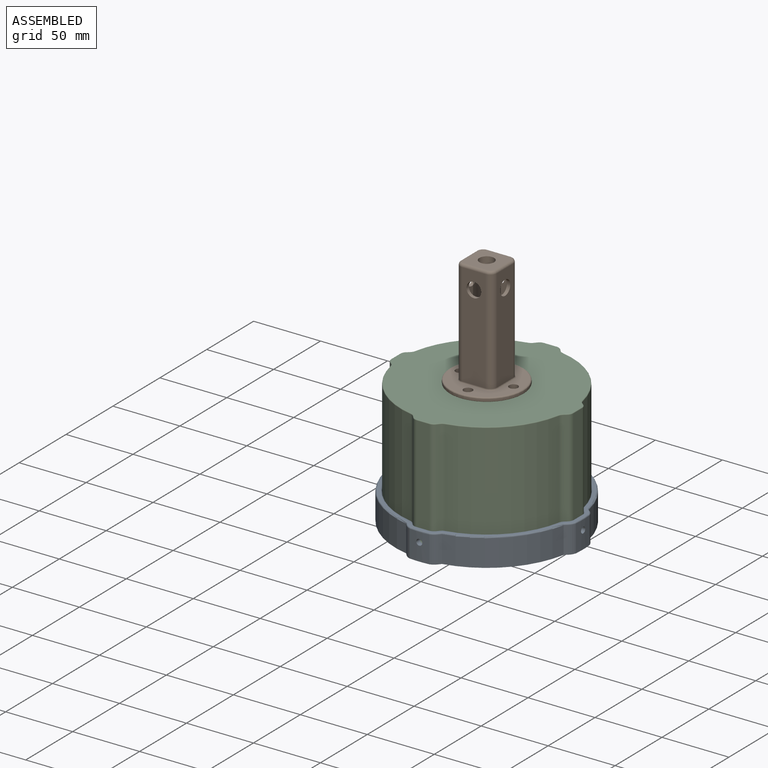
[diagram: assembled view]
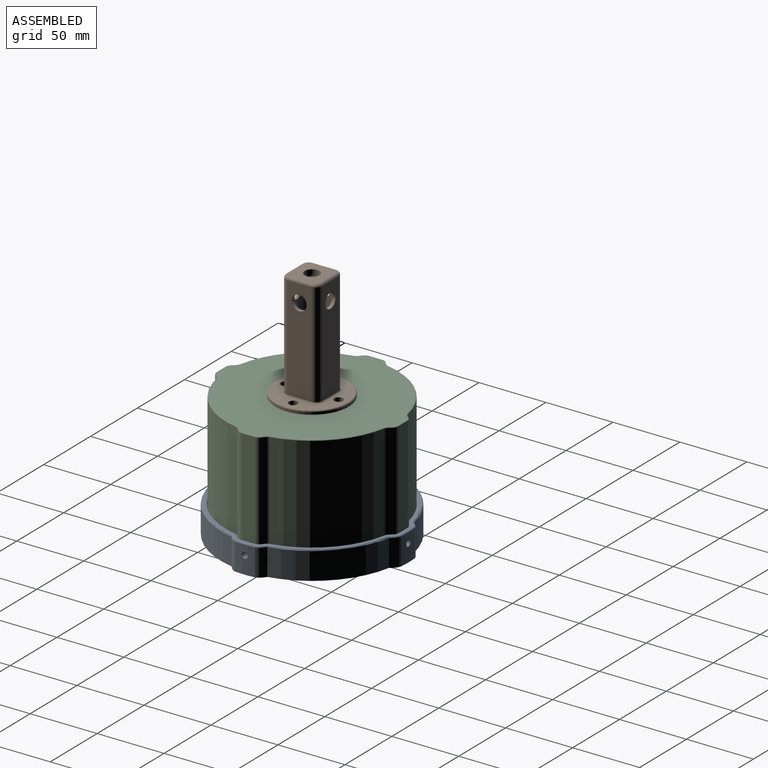
[diagram: assembled view, second angle]
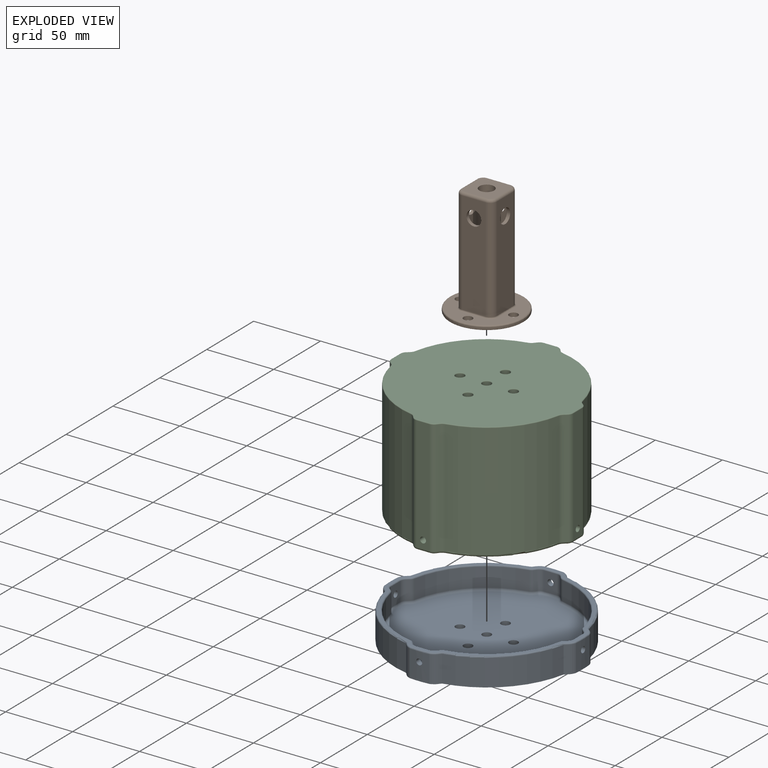
[diagram: exploded view]
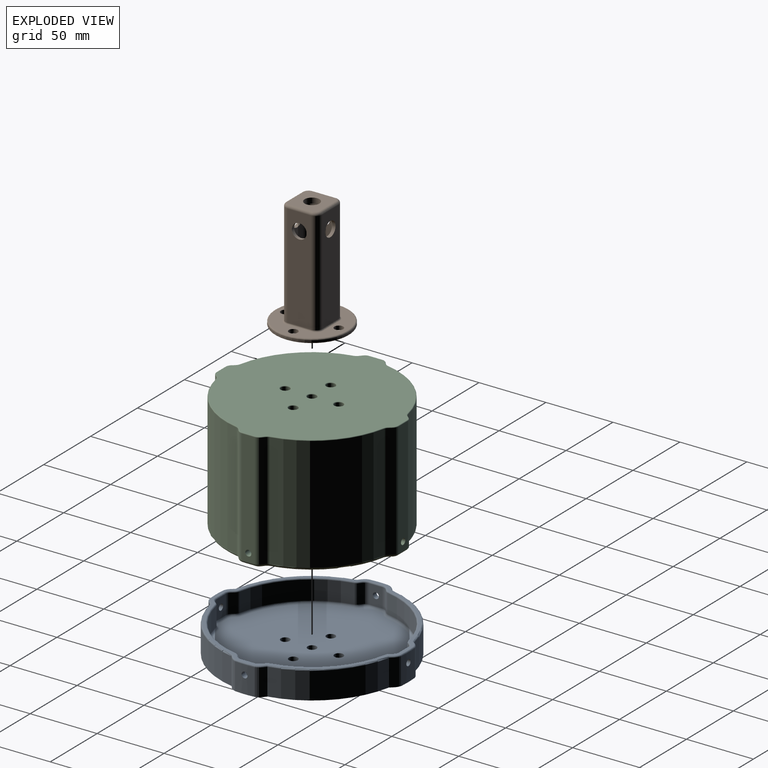
[diagram: exploded view, second angle]
ASSEMBLY  parts=3 mates=6
PART A: 156 faces, bbox 144.8x144.8x21 mm
  f0: cylinder r=72mm len=20mm, axis (0,0,-1), area 280.2mm2, adj f4,f73,f79,f92,f118
  f1: cylinder r=72mm len=20mm, axis (0,0,-1), area 280.2mm2, adj f4,f71,f87,f91,f106
  f2: cylinder r=72mm len=20mm, axis (0,0,-1), area 280.2mm2, adj f4,f74,f82,f86,f95
  f3: plane 142x142mm, normal (0,0,1), area 854.1mm2, adj f95,f96,f97,f98,f99,f100,f101,f102
  f4: plane 144x144mm, normal (0,0,-1), area 14747.2mm2, adj f0,f1,f2,f5,f75,f76,f77,f78
  f5: cylinder r=72mm len=20mm, axis (0,0,-1), area 280.2mm2, adj f4,f72,f75,f81,f107
  f6: cylinder r=64.1mm len=49.87mm, axis (0,0,-1), area 1060.4mm2, adj f35,f36,f55,f141
  f7: cylinder r=64.1mm len=49.87mm, axis (0,0,-1), area 1060.4mm2, adj f33,f34,f54,f128
  f8: cylinder r=64.1mm len=49.87mm, axis (0,0,-1), area 1060.4mm2, adj f31,f32,f70,f125
  f9: cylinder r=64.1mm len=49.87mm, axis (0,0,-1), area 1060.4mm2, adj f37,f38,f39,f144
  f10: plane 132.4x132.4mm, normal (0,0,1), area 12293.3mm2, adj f39,f40,f41,f42,f43,f44,f45,f46
  f11: plane 14.2x9.6mm, normal (0,-1,0), area 120.5mm2, adj f27,f28,f46,f72,f136
  f12: plane 14.2x9.6mm, normal (0,1,0), area 120.5mm2, adj f23,f24,f63,f71,f133
  f13: plane 14.2x9.6mm, normal (1,0,0), area 120.5mm2, adj f25,f26,f62,f74,f120
  f14: plane 14.2x9.6mm, normal (-1,0,0), area 120.5mm2, adj f29,f30,f47,f73,f149
  f15: plane 14.2x1.74mm, normal (-0.64,-0.77,0), area 32.2mm2, adj f30,f37,f43,f148
  f16: plane 14.2x1.74mm, normal (-0.64,0.77,0), area 32.2mm2, adj f29,f35,f51,f145
  f17: plane 14.2x1.74mm, normal (-0.77,-0.64,0), area 32.2mm2, adj f28,f38,f42,f140
  f18: plane 14.2x1.74mm, normal (0.77,-0.64,0), area 32.2mm2, adj f27,f33,f50,f132
  f19: plane 14.2x1.74mm, normal (0.64,-0.77,0), area 32.2mm2, adj f26,f34,f58,f124
  f20: plane 14.2x1.74mm, normal (0.64,0.77,0), area 32.2mm2, adj f25,f31,f66,f121
  f21: plane 14.2x1.74mm, normal (0.77,0.64,0), area 32.2mm2, adj f24,f32,f67,f129
  f22: plane 14.2x1.74mm, normal (-0.77,0.64,0), area 32.2mm2, adj f23,f36,f59,f137
  f23: cylinder r=5mm len=14.2mm, axis (0,0,1), area 62mm2, adj f12,f22,f61,f135
  f24: cylinder r=5mm len=14.2mm, axis (0,0,-1), area 62mm2, adj f12,f21,f65,f131
  f25: cylinder r=5mm len=14.2mm, axis (0,0,-1), area 62mm2, adj f13,f20,f64,f119
  f26: cylinder r=5mm len=14.2mm, axis (0,0,1), area 62mm2, adj f13,f19,f60,f122
  f27: cylinder r=5mm len=14.2mm, axis (0,0,-1), area 62mm2, adj f11,f18,f48,f134
  f28: cylinder r=5mm len=14.2mm, axis (0,0,1), area 62mm2, adj f11,f17,f44,f138
  f29: cylinder r=5mm len=14.2mm, axis (0,0,1), area 62mm2, adj f14,f16,f49,f147
  f30: cylinder r=5mm len=14.2mm, axis (0,0,-1), area 62mm2, adj f14,f15,f45,f150
  f31: cylinder r=5mm len=14.2mm, axis (0,0,-1), area 47.6mm2, adj f8,f20,f68,f123
  f32: cylinder r=5mm len=14.2mm, axis (0,0,-1), area 47.6mm2, adj f8,f21,f69,f127
  f33: cylinder r=5mm len=14.2mm, axis (0,0,-1), area 47.6mm2, adj f7,f18,f52,f130
  f34: cylinder r=5mm len=14.2mm, axis (0,0,-1), area 47.6mm2, adj f7,f19,f56,f126
  f35: cylinder r=5mm len=14.2mm, axis (0,0,-1), area 47.6mm2, adj f6,f16,f53,f143
  f36: cylinder r=5mm len=14.2mm, axis (0,0,-1), area 47.6mm2, adj f6,f22,f57,f139
  f37: cylinder r=5mm len=14.2mm, axis (0,0,-1), area 47.6mm2, adj f9,f15,f41,f146
  f38: cylinder r=5mm len=14.2mm, axis (0,0,-1), area 47.6mm2, adj f9,f17,f40,f142
  f39: torus R=62.3mm, axis (0,0,1), area 209mm2, adj f9,f10,f40,f41
  f40: torus R=6.8mm, axis (0,0,1), area 10.7mm2, adj f10,f38,f39,f42
  f41: torus R=6.8mm, axis (0,0,1), area 10.7mm2, adj f10,f37,f39,f43
  f42: cylinder r=1.8mm len=2.9mm, axis (0.64,-0.77,0), area 6.4mm2, adj f10,f17,f40,f44
  f43: cylinder r=1.8mm len=2.9mm, axis (-0.77,0.64,0), area 6.4mm2, adj f10,f15,f41,f45
  f44: torus R=3.2mm, axis (0,0,1), area 10.7mm2, adj f10,f28,f42,f46
  f45: torus R=3.2mm, axis (0,0,1), area 10.7mm2, adj f10,f30,f43,f47
  f46: cylinder r=1.8mm len=9.6mm, axis (1,0,0), area 27.2mm2, adj f10,f11,f44,f48
  f47: cylinder r=1.8mm len=9.6mm, axis (0,-1,0), area 27.2mm2, adj f10,f14,f45,f49
  f48: torus R=3.2mm, axis (0,0,1), area 10.7mm2, adj f10,f27,f46,f50
  f49: torus R=3.2mm, axis (0,0,1), area 10.7mm2, adj f10,f29,f47,f51
  f50: cylinder r=1.8mm len=2.9mm, axis (0.64,0.77,0), area 6.4mm2, adj f10,f18,f48,f52
  f51: cylinder r=1.8mm len=2.9mm, axis (0.77,0.64,0), area 6.4mm2, adj f10,f16,f49,f53
  f52: torus R=6.8mm, axis (0,0,1), area 10.7mm2, adj f10,f33,f50,f54
  f53: torus R=6.8mm, axis (0,0,1), area 10.7mm2, adj f10,f35,f51,f55
  f54: torus R=62.3mm, axis (0,0,1), area 209mm2, adj f7,f10,f52,f56
  f55: torus R=62.3mm, axis (0,0,1), area 209mm2, adj f6,f10,f53,f57
  f56: torus R=6.8mm, axis (0,0,1), area 10.7mm2, adj f10,f34,f54,f58
  f57: torus R=6.8mm, axis (0,0,1), area 10.7mm2, adj f10,f36,f55,f59
  f58: cylinder r=1.8mm len=2.9mm, axis (0.77,0.64,0), area 6.4mm2, adj f10,f19,f56,f60
  f59: cylinder r=1.8mm len=2.9mm, axis (-0.64,-0.77,0), area 6.4mm2, adj f10,f22,f57,f61
  f60: torus R=3.2mm, axis (0,0,1), area 10.7mm2, adj f10,f26,f58,f62
  f61: torus R=3.2mm, axis (0,0,1), area 10.7mm2, adj f10,f23,f59,f63
  f62: cylinder r=1.8mm len=9.6mm, axis (0,1,0), area 27.2mm2, adj f10,f13,f60,f64
  f63: cylinder r=1.8mm len=9.6mm, axis (-1,0,0), area 27.2mm2, adj f10,f12,f61,f65
  f64: torus R=3.2mm, axis (0,0,1), area 10.7mm2, adj f10,f25,f62,f66
  f65: torus R=3.2mm, axis (0,0,1), area 10.7mm2, adj f10,f24,f63,f67
  f66: cylinder r=1.8mm len=2.9mm, axis (-0.77,0.64,0), area 6.4mm2, adj f10,f20,f64,f68
  f67: cylinder r=1.8mm len=2.9mm, axis (-0.64,0.77,0), area 6.4mm2, adj f10,f21,f65,f69
  f68: torus R=6.8mm, axis (0,0,1), area 10.7mm2, adj f10,f31,f66,f70
  f69: torus R=6.8mm, axis (0,0,1), area 10.7mm2, adj f10,f32,f67,f70
  f70: torus R=62.3mm, axis (0,0,1), area 209mm2, adj f8,f10,f68,f69
  f71: cylinder r=2.25mm len=4.5mm, axis (0,-1,0), area 56.3mm2, adj f1,f12
  f72: cylinder r=2.25mm len=4.5mm, axis (0,-1,0), area 56.3mm2, adj f5,f11
  f73: cylinder r=2.25mm len=4.5mm, axis (1,0,0), area 56.3mm2, adj f0,f14
  f74: cylinder r=2.25mm len=4.5mm, axis (1,0,0), area 56.3mm2, adj f2,f13
  f75: cylinder r=9mm len=20mm, axis (0,0,1), area 104.7mm2, adj f4,f5,f76,f109
  f76: plane 20x2.01mm, normal (0.77,0.64,0), area 52.4mm2, adj f4,f75,f77,f111
  f77: cylinder r=68.1mm len=53.39mm, axis (0,0,1), area 1600.6mm2, adj f4,f76,f78,f113
  f78: plane 20x2.01mm, normal (0.64,0.77,0), area 52.4mm2, adj f4,f77,f79,f115
  f79: cylinder r=9mm len=20mm, axis (0,0,1), area 104.7mm2, adj f0,f4,f78,f117
  f80: plane 20x2.01mm, normal (-0.77,0.64,0), area 52.4mm2, adj f4,f81,f84,f103
  f81: cylinder r=9mm len=20mm, axis (0,0,1), area 104.7mm2, adj f4,f5,f80,f105
  f82: cylinder r=9mm len=20mm, axis (0,0,1), area 104.7mm2, adj f2,f4,f83,f97
  f83: plane 20x2.01mm, normal (-0.64,0.77,0), area 52.4mm2, adj f4,f82,f84,f99
  f84: cylinder r=68.1mm len=53.39mm, axis (0,0,1), area 1600.6mm2, adj f4,f80,f83,f101
  f85: plane 20x2.01mm, normal (-0.64,-0.77,0), area 52.4mm2, adj f4,f86,f89,f98
  f86: cylinder r=9mm len=20mm, axis (0,0,1), area 104.7mm2, adj f2,f4,f85,f96
  f87: cylinder r=9mm len=20mm, axis (0,0,1), area 104.7mm2, adj f1,f4,f88,f104
  f88: plane 20x2.01mm, normal (-0.77,-0.64,0), area 52.4mm2, adj f4,f87,f89,f102
  f89: cylinder r=68.1mm len=53.39mm, axis (0,0,1), area 1600.6mm2, adj f4,f85,f88,f100
  f90: plane 20x2.01mm, normal (0.77,-0.64,0), area 52.4mm2, adj f4,f91,f94,f110
  f91: cylinder r=9mm len=20mm, axis (0,0,1), area 104.7mm2, adj f1,f4,f90,f108
  f92: cylinder r=9mm len=20mm, axis (0,0,1), area 104.7mm2, adj f0,f4,f93,f116
  f93: plane 20x2.01mm, normal (0.64,-0.77,0), area 52.4mm2, adj f4,f92,f94,f114
  f94: cylinder r=68.1mm len=53.39mm, axis (0,0,1), area 1600.6mm2, adj f4,f90,f93,f112
  f95: torus R=71mm, axis (0,0,1), area 23mm2, adj f2,f3,f96,f97
  f96: torus R=8mm, axis (0,0,1), area 7.8mm2, adj f3,f86,f95,f98
  f97: torus R=8mm, axis (0,0,1), area 7.8mm2, adj f3,f82,f95,f99
  f98: cylinder r=1mm len=2.92mm, axis (0.77,-0.64,0), area 4.3mm2, adj f3,f85,f96,f100
  f99: cylinder r=1mm len=2.92mm, axis (-0.77,-0.64,0), area 4.3mm2, adj f3,f83,f97,f101
  f100: torus R=67.1mm, axis (0,0,1), area 125.4mm2, adj f3,f89,f98,f102
  f101: torus R=67.1mm, axis (0,0,1), area 125.4mm2, adj f3,f84,f99,f103
  f102: cylinder r=1mm len=2.92mm, axis (0.64,-0.77,0), area 4.3mm2, adj f3,f88,f100,f104
  f103: cylinder r=1mm len=2.92mm, axis (-0.64,-0.77,0), area 4.3mm2, adj f3,f80,f101,f105
  f104: torus R=8mm, axis (0,0,1), area 7.8mm2, adj f3,f87,f102,f106
  f105: torus R=8mm, axis (0,0,1), area 7.8mm2, adj f3,f81,f103,f107
  f106: torus R=71mm, axis (0,0,1), area 23mm2, adj f1,f3,f104,f108
  f107: torus R=71mm, axis (0,0,1), area 23mm2, adj f3,f5,f105,f109
  f108: torus R=8mm, axis (0,0,1), area 7.8mm2, adj f3,f91,f106,f110
  f109: torus R=8mm, axis (0,0,1), area 7.8mm2, adj f3,f75,f107,f111
  f110: cylinder r=1mm len=2.92mm, axis (0.64,0.77,0), area 4.3mm2, adj f3,f90,f108,f112
  f111: cylinder r=1mm len=2.92mm, axis (-0.64,0.77,0), area 4.3mm2, adj f3,f76,f109,f113
  f112: torus R=67.1mm, axis (0,0,1), area 125.4mm2, adj f3,f94,f110,f114
  f113: torus R=67.1mm, axis (0,0,1), area 125.4mm2, adj f3,f77,f111,f115
  f114: cylinder r=1mm len=2.92mm, axis (0.77,0.64,0), area 4.3mm2, adj f3,f93,f112,f116
  f115: cylinder r=1mm len=2.92mm, axis (-0.77,0.64,0), area 4.3mm2, adj f3,f78,f113,f117
  f116: torus R=8mm, axis (0,0,1), area 7.8mm2, adj f3,f92,f114,f118
  f117: torus R=8mm, axis (0,0,1), area 7.8mm2, adj f3,f79,f115,f118
  f118: torus R=71mm, axis (0,0,1), area 23mm2, adj f0,f3,f116,f117
  f119: torus R=6mm, axis (0,0,1), area 7.4mm2, adj f3,f25,f120,f121
  f120: cylinder r=1mm len=9.6mm, axis (0,1,0), area 15.1mm2, adj f3,f13,f119,f122
  f121: cylinder r=1mm len=2.38mm, axis (-0.77,0.64,0), area 3.6mm2, adj f3,f20,f119,f123
  f122: torus R=6mm, axis (0,0,1), area 7.4mm2, adj f3,f26,f120,f124
  f123: torus R=4mm, axis (0,0,1), area 4.9mm2, adj f3,f31,f121,f125
  f124: cylinder r=1mm len=2.38mm, axis (0.77,0.64,0), area 3.6mm2, adj f3,f19,f122,f126
  f125: torus R=65.1mm, axis (0,0,1), area 118mm2, adj f3,f8,f123,f127
  f126: torus R=4mm, axis (0,0,1), area 4.9mm2, adj f3,f34,f124,f128
  f127: torus R=4mm, axis (0,0,1), area 4.9mm2, adj f3,f32,f125,f129
  f128: torus R=65.1mm, axis (0,0,1), area 118mm2, adj f3,f7,f126,f130
  f129: cylinder r=1mm len=2.38mm, axis (-0.64,0.77,0), area 3.6mm2, adj f3,f21,f127,f131
  f130: torus R=4mm, axis (0,0,1), area 4.9mm2, adj f3,f33,f128,f132
  f131: torus R=6mm, axis (0,0,1), area 7.4mm2, adj f3,f24,f129,f133
  f132: cylinder r=1mm len=2.38mm, axis (0.64,0.77,0), area 3.6mm2, adj f3,f18,f130,f134
  f133: cylinder r=1mm len=9.6mm, axis (-1,0,0), area 15.1mm2, adj f3,f12,f131,f135
  f134: torus R=6mm, axis (0,0,1), area 7.4mm2, adj f3,f27,f132,f136
  f135: torus R=6mm, axis (0,0,1), area 7.4mm2, adj f3,f23,f133,f137
  f136: cylinder r=1mm len=9.6mm, axis (1,0,0), area 15.1mm2, adj f3,f11,f134,f138
  f137: cylinder r=1mm len=2.38mm, axis (-0.64,-0.77,0), area 3.6mm2, adj f3,f22,f135,f139
  f138: torus R=6mm, axis (0,0,1), area 7.4mm2, adj f3,f28,f136,f140
  f139: torus R=4mm, axis (0,0,1), area 4.9mm2, adj f3,f36,f137,f141
  f140: cylinder r=1mm len=2.38mm, axis (0.64,-0.77,0), area 3.6mm2, adj f3,f17,f138,f142
  f141: torus R=65.1mm, axis (0,0,1), area 118mm2, adj f3,f6,f139,f143
  f142: torus R=4mm, axis (0,0,1), area 4.9mm2, adj f3,f38,f140,f144
  f143: torus R=4mm, axis (0,0,1), area 4.9mm2, adj f3,f35,f141,f145
  f144: torus R=65.1mm, axis (0,0,1), area 118mm2, adj f3,f9,f142,f146
  f145: cylinder r=1mm len=2.38mm, axis (0.77,0.64,0), area 3.6mm2, adj f3,f16,f143,f147
  f146: torus R=4mm, axis (0,0,1), area 4.9mm2, adj f3,f37,f144,f148
  f147: torus R=6mm, axis (0,0,1), area 7.4mm2, adj f3,f29,f145,f149
  f148: cylinder r=1mm len=2.38mm, axis (-0.77,0.64,0), area 3.6mm2, adj f3,f15,f146,f150
  f149: cylinder r=1mm len=9.6mm, axis (0,-1,0), area 15.1mm2, adj f3,f14,f147,f150
  f150: torus R=6mm, axis (0,0,1), area 7.4mm2, adj f3,f30,f148,f149
  f151: cylinder r=3.3mm len=6.6mm, axis (0,0,1), area 82.9mm2, adj f4,f10
  f152: cylinder r=3.3mm len=6.6mm, axis (0,0,1), area 82.9mm2, adj f4,f10
  f153: cylinder r=3.3mm len=6.6mm, axis (0,0,1), area 82.9mm2, adj f4,f10
  f154: cylinder r=3.3mm len=6.6mm, axis (0,0,1), area 82.9mm2, adj f4,f10
  f155: cylinder r=3.3mm len=6.6mm, axis (0,0,1), area 82.9mm2, adj f4,f10
PART B: 64 faces, bbox 59.5x59.5x83 mm
  f0: plane 23.4x23.4mm, normal (0,0,1), area 444.8mm2, adj f17,f22,f23,f24,f25,f27,f29,f31
  f1: plane 54x54mm, normal (0,0,-1), area 1631.8mm2, adj f4,f5,f6,f7,f47,f48,f49,f50
  f2: plane 53x53mm, normal (0,0,1), area 1235.9mm2, adj f4,f5,f6,f7,f34,f35,f36,f37
  f3: cylinder r=27.5mm len=55mm, axis (0,0,-1), area 259.2mm2, adj f42,f55
  f4: cylinder r=3.3mm len=6.6mm, axis (0,0,1), area 62.2mm2, adj f1,f2
  f5: cylinder r=3.3mm len=6.6mm, axis (0,0,1), area 62.2mm2, adj f1,f2
  f6: cylinder r=3.3mm len=6.6mm, axis (0,0,1), area 62.2mm2, adj f1,f2
  f7: cylinder r=3.3mm len=6.6mm, axis (0,0,1), area 62.2mm2, adj f1,f2
  f8: plane 77x17.4mm, normal (1,0,0), area 1244.8mm2, adj f20,f22,f30,f32,f37
  f9: plane 77x17.4mm, normal (0,1,0), area 1244.8mm2, adj f19,f23,f28,f30,f34
  f10: plane 77x17.4mm, normal (-1,0,0), area 1244.8mm2, adj f21,f25,f26,f28,f38
  f11: plane 77x17.4mm, normal (0,-1,0), area 1244.8mm2, adj f18,f24,f26,f32,f41
  f12: plane 76.5x12.4mm, normal (0,-1,0), area 853.6mm2, adj f19,f43,f46,f49,f57
  f13: plane 76.5x12.4mm, normal (1,0,0), area 853.6mm2, adj f21,f43,f44,f48,f58
  f14: plane 76.5x12.4mm, normal (0,1,0), area 853.6mm2, adj f18,f44,f45,f52,f62
  f15: plane 76.5x12.4mm, normal (-1,0,0), area 853.6mm2, adj f20,f45,f46,f53,f61
  f16: plane 18.4x18.4mm, normal (0,0,-1), area 235.8mm2, adj f17,f56,f57,f58,f59,f60,f61,f62
  f17: cylinder r=5.5mm len=11mm, axis (0,0,1), area 138.2mm2, adj f0,f16
  f18: cylinder r=5.5mm len=11mm, axis (0,1,0), area 86.4mm2, adj f11,f14
  f19: cylinder r=5.5mm len=11mm, axis (0,1,0), area 86.4mm2, adj f9,f12
  f20: cylinder r=5.5mm len=11mm, axis (-1,0,0), area 86.4mm2, adj f8,f15
  f21: cylinder r=5.5mm len=11mm, axis (-1,0,0), area 86.4mm2, adj f10,f13
  f22: cylinder r=2mm len=17.4mm, axis (0,-1,0), area 54.7mm2, adj f0,f8,f31,f33
  f23: cylinder r=2mm len=17.4mm, axis (1,0,0), area 54.7mm2, adj f0,f9,f29,f31
  f24: cylinder r=2mm len=17.4mm, axis (-1,0,0), area 54.7mm2, adj f0,f11,f27,f33
  f25: cylinder r=2mm len=17.4mm, axis (0,1,0), area 54.7mm2, adj f0,f10,f27,f29
  f26: cylinder r=5mm len=77mm, axis (0,0,1), area 604.8mm2, adj f10,f11,f27,f40
  f27: torus R=3mm, axis (0,0,1), area 21.1mm2, adj f0,f24,f25,f26
  f28: cylinder r=5mm len=77mm, axis (0,0,-1), area 604.8mm2, adj f9,f10,f29,f36
  f29: torus R=3mm, axis (0,0,1), area 21.1mm2, adj f0,f23,f25,f28
  f30: cylinder r=5mm len=77mm, axis (0,0,1), area 604.8mm2, adj f8,f9,f31,f35
  f31: torus R=3mm, axis (0,0,1), area 21.1mm2, adj f0,f22,f23,f30
  f32: cylinder r=5mm len=77mm, axis (0,0,-1), area 604.8mm2, adj f8,f11,f33,f39
  f33: torus R=3mm, axis (0,0,1), area 21.1mm2, adj f0,f22,f24,f32
  f34: cylinder r=1mm len=17.4mm, axis (-1,0,0), area 27.3mm2, adj f2,f9,f35,f36
  f35: torus R=6mm, axis (0,0,1), area 13.2mm2, adj f2,f30,f34,f37
  f36: torus R=6mm, axis (0,0,1), area 13.2mm2, adj f2,f28,f34,f38
  f37: cylinder r=1mm len=17.4mm, axis (0,1,0), area 27.3mm2, adj f2,f8,f35,f39
  f38: cylinder r=1mm len=17.4mm, axis (0,-1,0), area 27.3mm2, adj f2,f10,f36,f40
  f39: torus R=6mm, axis (0,0,1), area 13.2mm2, adj f2,f32,f37,f41
  f40: torus R=6mm, axis (0,0,1), area 13.2mm2, adj f2,f26,f38,f41
  f41: cylinder r=1mm len=17.4mm, axis (1,0,0), area 27.3mm2, adj f2,f11,f39,f40
  f42: torus R=26.5mm, axis (0,0,1), area 267.8mm2, adj f2,f3
  f43: cylinder r=5mm len=76.5mm, axis (0,0,1), area 600.8mm2, adj f12,f13,f47,f56
  f44: cylinder r=5mm len=76.5mm, axis (0,0,-1), area 600.8mm2, adj f13,f14,f50,f60
  f45: cylinder r=5mm len=76.5mm, axis (0,0,1), area 600.8mm2, adj f14,f15,f54,f63
  f46: cylinder r=5mm len=76.5mm, axis (0,0,-1), area 600.8mm2, adj f12,f15,f51,f59
  f47: torus R=5.5mm, axis (0,0,1), area 6.4mm2, adj f1,f43,f48,f49
  f48: cylinder r=0.5mm len=12.4mm, axis (0,-1,0), area 9.7mm2, adj f1,f13,f47,f50
  f49: cylinder r=0.5mm len=12.4mm, axis (-1,0,0), area 9.7mm2, adj f1,f12,f47,f51
  f50: torus R=5.5mm, axis (0,0,1), area 6.4mm2, adj f1,f44,f48,f52
  f51: torus R=5.5mm, axis (0,0,1), area 6.4mm2, adj f1,f46,f49,f53
  f52: cylinder r=0.5mm len=12.4mm, axis (1,0,0), area 9.7mm2, adj f1,f14,f50,f54
  f53: cylinder r=0.5mm len=12.4mm, axis (0,1,0), area 9.7mm2, adj f1,f15,f51,f54
  f54: torus R=5.5mm, axis (0,0,1), area 6.4mm2, adj f1,f45,f52,f53
  f55: torus R=27mm, axis (0,0,1), area 134.8mm2, adj f1,f3
  f56: torus R=3mm, axis (0,0,1), area 21.1mm2, adj f16,f43,f57,f58
  f57: cylinder r=2mm len=12.4mm, axis (1,0,0), area 39mm2, adj f12,f16,f56,f59
  f58: cylinder r=2mm len=12.4mm, axis (0,1,0), area 39mm2, adj f13,f16,f56,f60
  f59: torus R=3mm, axis (0,0,1), area 21.1mm2, adj f16,f46,f57,f61
  f60: torus R=3mm, axis (0,0,1), area 21.1mm2, adj f16,f44,f58,f62
  f61: cylinder r=2mm len=12.4mm, axis (0,-1,0), area 39mm2, adj f15,f16,f59,f63
  f62: cylinder r=2mm len=12.4mm, axis (-1,0,0), area 39mm2, adj f14,f16,f60,f63
  f63: torus R=3mm, axis (0,0,1), area 21.1mm2, adj f16,f45,f61,f62
PART C: 117 faces, bbox 138.5x138.5x88 mm
  f0: plane 25.02x5.28mm, normal (0,0,1), area 68.2mm2, adj f88,f91,f92,f97,f98,f104,f105,f111
  f1: plane 25.02x5.28mm, normal (0,0,1), area 68.2mm2, adj f89,f93,f94,f99,f100,f106,f107,f111
  f2: plane 25.02x5.28mm, normal (0,0,1), area 68.2mm2, adj f101,f108,f109,f111,f112,f114,f115,f116
  f3: cylinder r=60mm len=120mm, axis (0,0,-1), area 28183.9mm2, adj f13,f14,f15,f16,f49,f111
  f4: cylinder r=64mm len=85.5mm, axis (0,0,-1), area 6371.6mm2, adj f46,f47,f81,f111
  f5: cylinder r=64mm len=85.5mm, axis (0,0,-1), area 6371.6mm2, adj f42,f43,f52,f111
  f6: cylinder r=64mm len=85.5mm, axis (0,0,-1), area 6371.6mm2, adj f40,f41,f68,f111
  f7: cylinder r=64mm len=85.5mm, axis (0,0,-1), area 6371.6mm2, adj f44,f45,f65,f111
  f8: plane 25.02x5.28mm, normal (0,0,1), area 68.2mm2, adj f90,f95,f96,f102,f103,f110,f111,f113
  f9: plane 85.5x9.43mm, normal (1,0,0), area 790.6mm2, adj f14,f38,f39,f73,f95
  f10: plane 85.5x9.43mm, normal (-1,0,0), area 790.6mm2, adj f16,f34,f35,f60,f89
  f11: plane 85.5x9.43mm, normal (0,-1,0), area 790.6mm2, adj f13,f36,f37,f57,f88
  f12: plane 85.5x9.43mm, normal (0,1,0), area 790.6mm2, adj f15,f32,f33,f76,f112
  f13: cylinder r=2.25mm len=8.04mm, axis (0,-1,0), area 113.4mm2, adj f3,f11
  f14: cylinder r=2.25mm len=8.04mm, axis (1,0,0), area 113.4mm2, adj f3,f9
  f15: cylinder r=2.25mm len=8.04mm, axis (0,1,0), area 113.4mm2, adj f3,f12
  f16: cylinder r=2.25mm len=8.04mm, axis (-1,0,0), area 113.4mm2, adj f3,f10
  f17: plane 105.86x105.86mm, normal (0,0,1), area 8630mm2, adj f19,f20,f21,f22,f23,f50
  f18: plane 135x135mm, normal (0,0,-1), area 12735.8mm2, adj f51,f52,f53,f54,f55,f56,f57,f58
  f19: cylinder r=3.3mm len=6.6mm, axis (0,0,1), area 72.6mm2, adj f17,f87
  f20: cylinder r=3.3mm len=6.6mm, axis (0,0,1), area 72.6mm2, adj f17,f86
  f21: cylinder r=3.3mm len=6.6mm, axis (0,0,1), area 72.6mm2, adj f17,f85
  f22: cylinder r=3.3mm len=6.6mm, axis (0,0,1), area 72.6mm2, adj f17,f84
  f23: cylinder r=3.3mm len=6.6mm, axis (0,0,1), area 72.6mm2, adj f17,f83
  f24: plane 85.5x1.84mm, normal (0.64,0.77,0), area 205.2mm2, adj f39,f46,f77,f110
  f25: plane 85.5x1.84mm, normal (0.64,-0.77,0), area 205.2mm2, adj f38,f44,f69,f96
  f26: plane 85.5x1.84mm, normal (0.77,-0.64,0), area 205.2mm2, adj f37,f45,f61,f97
  f27: plane 85.5x1.84mm, normal (-0.77,-0.64,0), area 205.2mm2, adj f36,f42,f53,f98
  f28: plane 85.5x1.84mm, normal (-0.64,-0.77,0), area 205.2mm2, adj f35,f43,f56,f99
  f29: plane 85.5x1.84mm, normal (-0.64,0.77,0), area 205.2mm2, adj f34,f40,f64,f100
  f30: plane 85.5x1.84mm, normal (-0.77,0.64,0), area 205.2mm2, adj f33,f41,f72,f101
  f31: plane 85.5x1.84mm, normal (0.77,0.64,0), area 205.2mm2, adj f32,f47,f80,f115
  f32: cylinder r=5mm len=85.5mm, axis (0,0,1), area 373.5mm2, adj f12,f31,f78,f114
  f33: cylinder r=5mm len=85.5mm, axis (0,0,-1), area 373.5mm2, adj f12,f30,f74,f109
  f34: cylinder r=5mm len=85.5mm, axis (0,0,1), area 373.5mm2, adj f10,f29,f62,f94
  f35: cylinder r=5mm len=85.5mm, axis (0,0,-1), area 373.5mm2, adj f10,f28,f58,f93
  f36: cylinder r=5mm len=85.5mm, axis (0,0,-1), area 373.5mm2, adj f11,f27,f55,f92
  f37: cylinder r=5mm len=85.5mm, axis (0,0,1), area 373.5mm2, adj f11,f26,f59,f91
  f38: cylinder r=5mm len=85.5mm, axis (0,0,-1), area 373.5mm2, adj f9,f25,f71,f90
  f39: cylinder r=5mm len=85.5mm, axis (0,0,1), area 373.5mm2, adj f9,f24,f75,f102
  f40: cylinder r=5mm len=85.5mm, axis (0,0,-1), area 286.6mm2, adj f6,f29,f66,f107
  f41: cylinder r=5mm len=85.5mm, axis (0,0,-1), area 286.6mm2, adj f6,f30,f70,f108
  f42: cylinder r=5mm len=85.5mm, axis (0,0,-1), area 286.6mm2, adj f5,f27,f51,f105
  f43: cylinder r=5mm len=85.5mm, axis (0,0,-1), area 286.6mm2, adj f5,f28,f54,f106
  f44: cylinder r=5mm len=85.5mm, axis (0,0,-1), area 286.6mm2, adj f7,f25,f67,f103
  f45: cylinder r=5mm len=85.5mm, axis (0,0,-1), area 286.6mm2, adj f7,f26,f63,f104
  f46: cylinder r=5mm len=85.5mm, axis (0,0,-1), area 286.6mm2, adj f4,f24,f79,f113
  f47: cylinder r=5mm len=85.5mm, axis (0,0,-1), area 286.6mm2, adj f4,f31,f82,f116
  f48: cone r=55mm half-angle=45deg, axis (0,0,1), area 1058.2mm2, adj f49,f50
  f49: torus R=55mm, axis (0,0,-1), area 1468.1mm2, adj f3,f48
  f50: torus R=52.93mm, axis (0,0,1), area 1352mm2, adj f17,f48
  f51: torus R=5.5mm, axis (0,0,1), area 2.7mm2, adj f18,f42,f52,f53
  f52: torus R=63.5mm, axis (0,0,1), area 58.4mm2, adj f5,f18,f51,f54
  f53: cylinder r=0.5mm len=2.16mm, axis (-0.64,0.77,0), area 1.9mm2, adj f18,f27,f51,f55
  f54: torus R=5.5mm, axis (0,0,1), area 2.7mm2, adj f18,f43,f52,f56
  f55: torus R=4.5mm, axis (0,0,1), area 3.3mm2, adj f18,f36,f53,f57
  f56: cylinder r=0.5mm len=2.16mm, axis (-0.77,0.64,0), area 1.9mm2, adj f18,f28,f54,f58
  f57: cylinder r=0.5mm len=9.43mm, axis (1,0,0), area 7.4mm2, adj f11,f18,f55,f59
  f58: torus R=4.5mm, axis (0,0,1), area 3.3mm2, adj f18,f35,f56,f60
  f59: torus R=4.5mm, axis (0,0,1), area 3.3mm2, adj f18,f37,f57,f61
  f60: cylinder r=0.5mm len=9.43mm, axis (0,-1,0), area 7.4mm2, adj f10,f18,f58,f62
  f61: cylinder r=0.5mm len=2.16mm, axis (-0.64,-0.77,0), area 1.9mm2, adj f18,f26,f59,f63
  f62: torus R=4.5mm, axis (0,0,1), area 3.3mm2, adj f18,f34,f60,f64
  f63: torus R=5.5mm, axis (0,0,1), area 2.7mm2, adj f18,f45,f61,f65
  f64: cylinder r=0.5mm len=2.16mm, axis (0.77,0.64,0), area 1.9mm2, adj f18,f29,f62,f66
  f65: torus R=63.5mm, axis (0,0,1), area 58.4mm2, adj f7,f18,f63,f67
  f66: torus R=5.5mm, axis (0,0,1), area 2.7mm2, adj f18,f40,f64,f68
  f67: torus R=5.5mm, axis (0,0,1), area 2.7mm2, adj f18,f44,f65,f69
  f68: torus R=63.5mm, axis (0,0,1), area 58.4mm2, adj f6,f18,f66,f70
  f69: cylinder r=0.5mm len=2.16mm, axis (-0.77,-0.64,0), area 1.9mm2, adj f18,f25,f67,f71
  f70: torus R=5.5mm, axis (0,0,1), area 2.7mm2, adj f18,f41,f68,f72
  f71: torus R=4.5mm, axis (0,0,1), area 3.3mm2, adj f18,f38,f69,f73
  f72: cylinder r=0.5mm len=2.16mm, axis (0.64,0.77,0), area 1.9mm2, adj f18,f30,f70,f74
  f73: cylinder r=0.5mm len=9.43mm, axis (0,1,0), area 7.4mm2, adj f9,f18,f71,f75
  f74: torus R=4.5mm, axis (0,0,1), area 3.3mm2, adj f18,f33,f72,f76
  f75: torus R=4.5mm, axis (0,0,1), area 3.3mm2, adj f18,f39,f73,f77
  f76: cylinder r=0.5mm len=9.43mm, axis (-1,0,0), area 7.4mm2, adj f12,f18,f74,f78
  f77: cylinder r=0.5mm len=2.16mm, axis (0.77,-0.64,0), area 1.9mm2, adj f18,f24,f75,f79
  f78: torus R=4.5mm, axis (0,0,1), area 3.3mm2, adj f18,f32,f76,f80
  f79: torus R=5.5mm, axis (0,0,1), area 2.7mm2, adj f18,f46,f77,f81
  f80: cylinder r=0.5mm len=2.16mm, axis (0.64,-0.77,0), area 1.9mm2, adj f18,f31,f78,f82
  f81: torus R=63.5mm, axis (0,0,1), area 58.4mm2, adj f4,f18,f79,f82
  f82: torus R=5.5mm, axis (0,0,1), area 2.7mm2, adj f18,f47,f80,f81
  f83: torus R=3.8mm, axis (0,0,1), area 17.2mm2, adj f18,f23
  f84: torus R=3.8mm, axis (0,0,1), area 17.2mm2, adj f18,f22
  f85: torus R=3.8mm, axis (0,0,1), area 17.2mm2, adj f18,f21
  f86: torus R=3.8mm, axis (0,0,1), area 17.2mm2, adj f18,f20
  f87: torus R=3.8mm, axis (0,0,1), area 17.2mm2, adj f18,f19
  f88: cylinder r=2mm len=9.43mm, axis (-1,0,0), area 29.6mm2, adj f0,f11,f91,f92
  f89: cylinder r=2mm len=9.43mm, axis (0,1,0), area 29.6mm2, adj f1,f10,f93,f94
  f90: torus R=3mm, axis (0,0,1), area 11.7mm2, adj f8,f38,f95,f96
  f91: torus R=3mm, axis (0,0,1), area 11.7mm2, adj f0,f37,f88,f97
  f92: torus R=3mm, axis (0,0,1), area 11.7mm2, adj f0,f36,f88,f98
  f93: torus R=3mm, axis (0,0,1), area 11.7mm2, adj f1,f35,f89,f99
  f94: torus R=3mm, axis (0,0,1), area 11.7mm2, adj f1,f34,f89,f100
  f95: cylinder r=2mm len=9.43mm, axis (0,-1,0), area 29.6mm2, adj f8,f9,f90,f102
  f96: cylinder r=2mm len=3.12mm, axis (-0.77,-0.64,0), area 7.5mm2, adj f8,f25,f90,f103
  f97: cylinder r=2mm len=3.12mm, axis (-0.64,-0.77,0), area 7.5mm2, adj f0,f26,f91,f104
  f98: cylinder r=2mm len=3.12mm, axis (-0.64,0.77,0), area 7.5mm2, adj f0,f27,f92,f105
  f99: cylinder r=2mm len=3.12mm, axis (-0.77,0.64,0), area 7.5mm2, adj f1,f28,f93,f106
  f100: cylinder r=2mm len=3.12mm, axis (0.77,0.64,0), area 7.5mm2, adj f1,f29,f94,f107
  f101: cylinder r=2mm len=3.12mm, axis (0.64,0.77,0), area 7.5mm2, adj f2,f30,f108,f109
  f102: torus R=3mm, axis (0,0,1), area 11.7mm2, adj f8,f39,f95,f110
  f103: torus R=7mm, axis (0,0,1), area 12.1mm2, adj f8,f44,f96,f111
  f104: torus R=7mm, axis (0,0,1), area 12.1mm2, adj f0,f45,f97,f111
  f105: torus R=7mm, axis (0,0,1), area 12.1mm2, adj f0,f42,f98,f111
  f106: torus R=7mm, axis (0,0,1), area 12.1mm2, adj f1,f43,f99,f111
  f107: torus R=7mm, axis (0,0,1), area 12.1mm2, adj f1,f40,f100,f111
  f108: torus R=7mm, axis (0,0,1), area 12.1mm2, adj f2,f41,f101,f111
  f109: torus R=3mm, axis (0,0,1), area 11.7mm2, adj f2,f33,f101,f112
  f110: cylinder r=2mm len=3.12mm, axis (0.77,-0.64,0), area 7.5mm2, adj f8,f24,f102,f113
  f111: torus R=62mm, axis (0,0,1), area 2124.5mm2, adj f0,f1,f2,f3,f4,f5,f6,f7
  f112: cylinder r=2mm len=9.43mm, axis (1,0,0), area 29.6mm2, adj f2,f12,f109,f114
  f113: torus R=7mm, axis (0,0,1), area 12.1mm2, adj f8,f46,f110,f111
  f114: torus R=3mm, axis (0,0,1), area 11.7mm2, adj f2,f32,f112,f115
  f115: cylinder r=2mm len=3.12mm, axis (0.64,-0.77,0), area 7.5mm2, adj f2,f31,f114,f116
  f116: torus R=7mm, axis (0,0,1), area 12.1mm2, adj f2,f47,f111,f115
PLACE A t=(86.8,-3.75,-124.23)mm
PLACE B rot(axis=(0,0,1),180deg) t=(86.8,-3.75,-35.23)mm
PLACE C rot(axis=(1,0,0),180deg) t=(86.8,-3.75,-39.23)mm
MATE cylindrical C.f19 <-> B.f7  axis (0,0,1) through (86.8,-23.75,-35.23)mm
MATE cylindrical A.f73 <-> C.f14  axis (1,0,0) through (154.8,-3.75,-115.23)mm
MATE planar B.f3 <-> C.f19  axis (0,0,-1) through (86.8,-3.75,-35.23)mm
MATE cylindrical A.f153 <-> C.f22  axis (0,0,1) through (86.8,-3.75,-124.23)mm
MATE cylindrical C.f20 <-> B.f5  axis (0,0,1) through (86.8,16.25,-35.23)mm
MATE cylindrical C.f21 <-> A.f152  axis (0,0,1) through (66.8,-3.75,-35.23)mm
